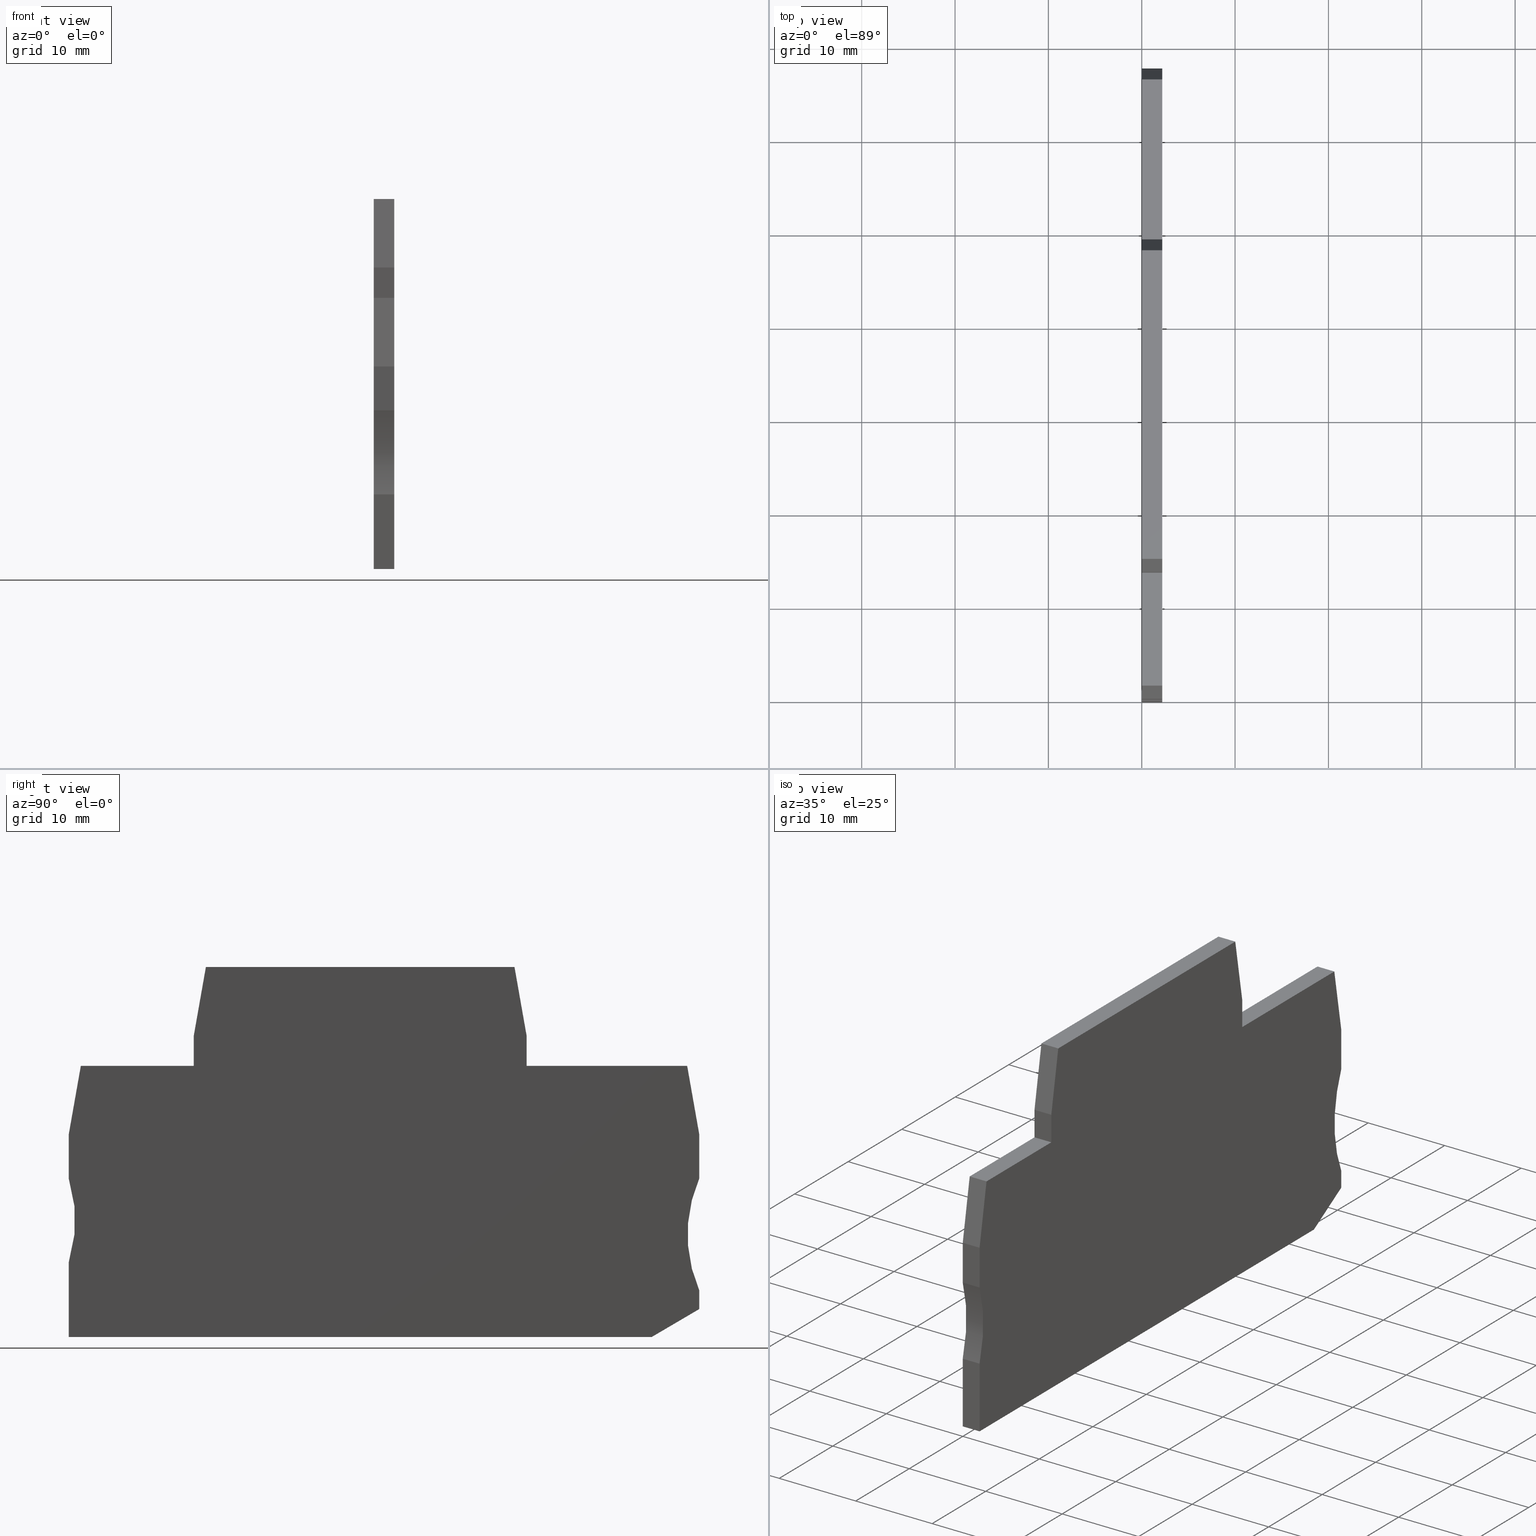
[diagram: canonical four-view strip — front | top / right | iso, engineering-drawing reading convention]
A machine part, canonical four-view strip (front | top / right | iso — engineering-drawing reading convention). The complete STEP part file that produces these views, byte-faithful:
ISO-10303-21;
HEADER;
FILE_DESCRIPTION(('Creo Elements/Direct Modeling STEP Export'),'2;1');
FILE_NAME(
'D:/temp/JobSpoolerServerData/JobServer Files/60e5dd58-bd78-48d4-917f-54
f4e4605abc/work/output/model.stp','2018-03-20T 7:31:34',(''),(''),
'Creo Elements/Direct Modeling STEP processor for AP214 (Solid Model)',
'Creo Elements/Direct Modeling 18.1I  14-Aug-2016 (C) Parametric Technol
ogy GmbH','');
FILE_SCHEMA(('AUTOMOTIVE_DESIGN { 1 0 10303 214 1 1 1 1 }'));
ENDSEC;
DATA;
#10=CARTESIAN_POINT('',(96.9073958539173,-5.90000000010878,53.67));
#20=DIRECTION('',(1.,8.74514136349906E-15,0.));
#30=DIRECTION('',(8.74514136349906E-15,-1.,0.));
#40=AXIS2_PLACEMENT_3D('',#10,#20,#30);
#50=PLANE('',#40);
#60=CARTESIAN_POINT('',(96.9073958539173,-11.94298,53.67));
#70=DIRECTION('',(8.74514136349906E-15,-1.,0.));
#80=VECTOR('',#70,1.);
#90=LINE('',#60,#80);
#100=CARTESIAN_POINT('',(96.9073958539173,-5.90000000010878,53.67));
#110=VERTEX_POINT('',#100);
#120=CARTESIAN_POINT('',(96.9073958539173,-9.15000000000308,53.67));
#130=VERTEX_POINT('',#120);
#140=EDGE_CURVE('',#110,#130,#90,.T.);
#150=ORIENTED_EDGE('',*,*,#140,.F.);
#160=CARTESIAN_POINT('',(96.9073958539173,-9.15000000000308,53.67));
#170=DIRECTION('',(0.,0.,-1.));
#180=VECTOR('',#170,1.);
#190=LINE('',#160,#180);
#200=CARTESIAN_POINT('',(96.9073958539173,-9.15000000000308,55.87));
#210=VERTEX_POINT('',#200);
#220=EDGE_CURVE('',#210,#130,#190,.T.);
#230=ORIENTED_EDGE('',*,*,#220,.T.);
#240=CARTESIAN_POINT('',(96.9073958539173,-11.94298,55.87));
#250=DIRECTION('',(-8.74514136349906E-15,1.,0.));
#260=VECTOR('',#250,1.);
#270=LINE('',#240,#260);
#280=CARTESIAN_POINT('',(96.9073958539173,-5.90000000010878,55.87));
#290=VERTEX_POINT('',#280);
#300=EDGE_CURVE('',#210,#290,#270,.T.);
#310=ORIENTED_EDGE('',*,*,#300,.F.);
#320=CARTESIAN_POINT('',(96.9073958539173,-5.90000000010878,53.67));
#330=DIRECTION('',(0.,0.,1.));
#340=VECTOR('',#330,1.);
#350=LINE('',#320,#340);
#360=EDGE_CURVE('',#110,#290,#350,.T.);
#370=ORIENTED_EDGE('',*,*,#360,.T.);
#380=EDGE_LOOP('',(#370,#310,#230,#150));
#390=FACE_OUTER_BOUND('',#380,.T.);
#400=ADVANCED_FACE('',(#390),#50,.T.);
#410=COLOUR_RGB('',0.560784339904785,0.588235318660736,0.600000023841858
);
#420=FILL_AREA_STYLE_COLOUR('',#410);
#430=FILL_AREA_STYLE('',(#420));
#440=SURFACE_STYLE_FILL_AREA(#430);
#450=SURFACE_SIDE_STYLE('',(#440));
#460=SURFACE_STYLE_USAGE(.BOTH.,#450);
#470=PRESENTATION_STYLE_ASSIGNMENT((#460));
#480=CARTESIAN_POINT('',(110.789442363971,-38.2000000000016,53.67));
#490=DIRECTION('',(-0.,-1.,-0.));
#500=DIRECTION('',(-1.,0.,0.));
#510=AXIS2_PLACEMENT_3D('',#480,#490,#500);
#520=PLANE('',#510);
#530=CARTESIAN_POINT('',(47.8573958538972,-38.2000000000016,53.67));
#540=DIRECTION('',(0.,0.,1.));
#550=VECTOR('',#540,1.);
#560=LINE('',#530,#550);
#570=CARTESIAN_POINT('',(47.8573958538972,-38.2000000000016,53.67));
#580=VERTEX_POINT('',#570);
#590=CARTESIAN_POINT('',(47.8573958538972,-38.2000000000016,55.87));
#600=VERTEX_POINT('',#590);
#610=EDGE_CURVE('',#580,#600,#560,.T.);
#620=ORIENTED_EDGE('',*,*,#610,.F.);
#630=CARTESIAN_POINT('',(104.930098,-38.2000000000016,55.87));
#640=DIRECTION('',(1.,0.,0.));
#650=VECTOR('',#640,1.);
#660=LINE('',#630,#650);
#670=CARTESIAN_POINT('',(110.302453373372,-38.2000000000016,55.87));
#680=VERTEX_POINT('',#670);
#690=EDGE_CURVE('',#600,#680,#660,.T.);
#700=ORIENTED_EDGE('',*,*,#690,.F.);
#710=CARTESIAN_POINT('',(110.302453373372,-38.2000000000016,53.67));
#720=DIRECTION('',(0.,0.,-1.));
#730=VECTOR('',#720,1.);
#740=LINE('',#710,#730);
#750=CARTESIAN_POINT('',(110.302453373372,-38.2000000000016,53.67));
#760=VERTEX_POINT('',#750);
#770=EDGE_CURVE('',#680,#760,#740,.T.);
#780=ORIENTED_EDGE('',*,*,#770,.F.);
#790=CARTESIAN_POINT('',(104.930098,-38.2000000000016,53.67));
#800=DIRECTION('',(-1.,0.,0.));
#810=VECTOR('',#800,1.);
#820=LINE('',#790,#810);
#830=EDGE_CURVE('',#760,#580,#820,.T.);
#840=ORIENTED_EDGE('',*,*,#830,.F.);
#850=EDGE_LOOP('',(#840,#780,#700,#620));
#860=FACE_OUTER_BOUND('',#850,.T.);
#870=ADVANCED_FACE('',(#860),#520,.T.);
#880=COLOUR_RGB('',0.560784339904785,0.588235318660736,0.600000023841858
);
#890=FILL_AREA_STYLE_COLOUR('',#880);
#900=FILL_AREA_STYLE('',(#890));
#910=SURFACE_STYLE_FILL_AREA(#900);
#920=SURFACE_SIDE_STYLE('',(#910));
#930=SURFACE_STYLE_USAGE(.BOTH.,#920);
#940=PRESENTATION_STYLE_ASSIGNMENT((#930));
#950=CARTESIAN_POINT('',(115.407395853897,-16.5000017509225,53.67));
#960=DIRECTION('',(1.,0.,0.));
#970=DIRECTION('',(0.,-1.,0.));
#980=AXIS2_PLACEMENT_3D('',#950,#960,#970);
#990=PLANE('',#980);
#1000=CARTESIAN_POINT('',(115.407395853897,-11.94298,53.67));
#1010=DIRECTION('',(0.,-1.,0.));
#1020=VECTOR('',#1010,1.);
#1030=LINE('',#1000,#1020);
#1040=CARTESIAN_POINT('',(115.407395853897,-16.5000017509225,53.67));
#1050=VERTEX_POINT('',#1040);
#1060=CARTESIAN_POINT('',(115.407395853897,-21.2000000000027,53.67));
#1070=VERTEX_POINT('',#1060);
#1080=EDGE_CURVE('',#1050,#1070,#1030,.T.);
#1090=ORIENTED_EDGE('',*,*,#1080,.F.);
#1100=CARTESIAN_POINT('',(115.407395853897,-21.2000000000027,53.67));
#1110=DIRECTION('',(0.,0.,1.));
#1120=VECTOR('',#1110,1.);
#1130=LINE('',#1100,#1120);
#1140=CARTESIAN_POINT('',(115.407395853897,-21.2000000000027,55.87));
#1150=VERTEX_POINT('',#1140);
#1160=EDGE_CURVE('',#1070,#1150,#1130,.T.);
#1170=ORIENTED_EDGE('',*,*,#1160,.F.);
#1180=CARTESIAN_POINT('',(115.407395853897,-11.94298,55.87));
#1190=DIRECTION('',(0.,1.,0.));
#1200=VECTOR('',#1190,1.);
#1210=LINE('',#1180,#1200);
#1220=CARTESIAN_POINT('',(115.407395853897,-16.5000017509225,55.87));
#1230=VERTEX_POINT('',#1220);
#1240=EDGE_CURVE('',#1150,#1230,#1210,.T.);
#1250=ORIENTED_EDGE('',*,*,#1240,.F.);
#1260=CARTESIAN_POINT('',(115.407395853897,-16.5000017509225,53.67));
#1270=DIRECTION('',(0.,0.,1.));
#1280=VECTOR('',#1270,1.);
#1290=LINE('',#1260,#1280);
#1300=EDGE_CURVE('',#1050,#1230,#1290,.T.);
#1310=ORIENTED_EDGE('',*,*,#1300,.T.);
#1320=EDGE_LOOP('',(#1310,#1250,#1170,#1090));
#1330=FACE_OUTER_BOUND('',#1320,.T.);
#1340=ADVANCED_FACE('',(#1330),#990,.T.);
#1350=COLOUR_RGB('',0.560784339904785,0.588235318660736,
0.600000023841858);
#1360=FILL_AREA_STYLE_COLOUR('',#1350);
#1370=FILL_AREA_STYLE('',(#1360));
#1380=SURFACE_STYLE_FILL_AREA(#1370);
#1390=SURFACE_SIDE_STYLE('',(#1380));
#1400=SURFACE_STYLE_USAGE(.BOTH.,#1390);
#1410=PRESENTATION_STYLE_ASSIGNMENT((#1400));
#1420=CARTESIAN_POINT('',(47.8573958538972,-49.2892826418515,53.67));
#1430=DIRECTION('',(-1.,4.65275954243089E-17,0.));
#1440=DIRECTION('',(-4.65275954243089E-17,-1.,0.));
#1450=AXIS2_PLACEMENT_3D('',#1420,#1430,#1440);
#1460=PLANE('',#1450);
#1470=CARTESIAN_POINT('',(47.8573958538972,-11.94298,53.67));
#1480=DIRECTION('',(4.65275954243089E-17,1.,0.));
#1490=VECTOR('',#1480,1.);
#1500=LINE('',#1470,#1490);
#1510=CARTESIAN_POINT('',(47.8573958538972,-30.2000000000048,53.67));
#1520=VERTEX_POINT('',#1510);
#1530=EDGE_CURVE('',#580,#1520,#1500,.T.);
#1540=ORIENTED_EDGE('',*,*,#1530,.F.);
#1550=CARTESIAN_POINT('',(47.8573958538972,-30.2000000000048,53.67));
#1560=DIRECTION('',(0.,0.,-1.));
#1570=VECTOR('',#1560,1.);
#1580=LINE('',#1550,#1570);
#1590=CARTESIAN_POINT('',(47.8573958538972,-30.2000000000048,55.87));
#1600=VERTEX_POINT('',#1590);
#1610=EDGE_CURVE('',#1600,#1520,#1580,.T.);
#1620=ORIENTED_EDGE('',*,*,#1610,.T.);
#1630=CARTESIAN_POINT('',(47.8573958538972,-11.94298,55.87));
#1640=DIRECTION('',(-4.65275954243089E-17,-1.,0.));
#1650=VECTOR('',#1640,1.);
#1660=LINE('',#1630,#1650);
#1670=EDGE_CURVE('',#1600,#600,#1660,.T.);
#1680=ORIENTED_EDGE('',*,*,#1670,.F.);
#1690=ORIENTED_EDGE('',*,*,#610,.T.);
#1700=EDGE_LOOP('',(#1690,#1680,#1620,#1540));
#1710=FACE_OUTER_BOUND('',#1700,.T.);
#1720=ADVANCED_FACE('',(#1710),#1460,.T.);
#1730=COLOUR_RGB('',0.560784339904785,0.588235318660736,
0.600000023841858);
#1740=FILL_AREA_STYLE_COLOUR('',#1730);
#1750=FILL_AREA_STYLE('',(#1740));
#1760=SURFACE_STYLE_FILL_AREA(#1750);
#1770=SURFACE_SIDE_STYLE('',(#1760));
#1780=SURFACE_STYLE_USAGE(.BOTH.,#1770);
#1790=PRESENTATION_STYLE_ASSIGNMENT((#1780));
#1800=CARTESIAN_POINT('',(115.407395853897,-33.2000000000028,53.67));
#1810=DIRECTION('',(1.,0.,0.));
#1820=DIRECTION('',(0.,-1.,0.));
#1830=AXIS2_PLACEMENT_3D('',#1800,#1810,#1820);
#1840=PLANE('',#1830);
#1850=CARTESIAN_POINT('',(115.407395853897,-11.94298,53.67));
#1860=DIRECTION('',(0.,-1.,0.));
#1870=VECTOR('',#1860,1.);
#1880=LINE('',#1850,#1870);
#1890=CARTESIAN_POINT('',(115.407395853897,-33.2000000000028,53.67));
#1900=VERTEX_POINT('',#1890);
#1910=CARTESIAN_POINT('',(115.407395853897,-35.2001345347364,53.67));
#1920=VERTEX_POINT('',#1910);
#1930=EDGE_CURVE('',#1900,#1920,#1880,.T.);
#1940=ORIENTED_EDGE('',*,*,#1930,.F.);
#1950=CARTESIAN_POINT('',(115.407395853897,-35.2001345347364,53.67));
#1960=DIRECTION('',(0.,0.,1.));
#1970=VECTOR('',#1960,1.);
#1980=LINE('',#1950,#1970);
#1990=CARTESIAN_POINT('',(115.407395853897,-35.2001345347364,55.87));
#2000=VERTEX_POINT('',#1990);
#2010=EDGE_CURVE('',#1920,#2000,#1980,.T.);
#2020=ORIENTED_EDGE('',*,*,#2010,.F.);
#2030=CARTESIAN_POINT('',(115.407395853897,-11.94298,55.87));
#2040=DIRECTION('',(0.,1.,0.));
#2050=VECTOR('',#2040,1.);
#2060=LINE('',#2030,#2050);
#2070=CARTESIAN_POINT('',(115.407395853897,-33.2000000000028,55.87));
#2080=VERTEX_POINT('',#2070);
#2090=EDGE_CURVE('',#2000,#2080,#2060,.T.);
#2100=ORIENTED_EDGE('',*,*,#2090,.F.);
#2110=CARTESIAN_POINT('',(115.407395853897,-33.2000000000028,53.67));
#2120=DIRECTION('',(0.,0.,1.));
#2130=VECTOR('',#2120,1.);
#2140=LINE('',#2110,#2130);
#2150=EDGE_CURVE('',#1900,#2080,#2140,.T.);
#2160=ORIENTED_EDGE('',*,*,#2150,.T.);
#2170=EDGE_LOOP('',(#2160,#2100,#2020,#1940));
#2180=FACE_OUTER_BOUND('',#2170,.T.);
#2190=ADVANCED_FACE('',(#2180),#1840,.T.);
#2200=COLOUR_RGB('',0.560784339904785,0.588235318660736,
0.600000023841858);
#2210=FILL_AREA_STYLE_COLOUR('',#2200);
#2220=FILL_AREA_STYLE('',(#2210));
#2230=SURFACE_STYLE_FILL_AREA(#2220);
#2240=SURFACE_SIDE_STYLE('',(#2230));
#2250=SURFACE_STYLE_USAGE(.BOTH.,#2240);
#2260=PRESENTATION_STYLE_ASSIGNMENT((#2250));
#2270=CARTESIAN_POINT('',(129.155122938765,-27.2000000000027,53.67));
#2280=DIRECTION('',(0.,0.,1.));
#2290=DIRECTION('',(1.,0.,0.));
#2300=AXIS2_PLACEMENT_3D('',#2270,#2280,#2290);
#2310=CYLINDRICAL_SURFACE('',#2300,15.);
#2320=CARTESIAN_POINT('',(129.155122938765,-27.2000000000027,53.67));
#2330=DIRECTION('',(0.,0.,1.));
#2340=DIRECTION('',(1.,0.,0.));
#2350=AXIS2_PLACEMENT_3D('',#2320,#2330,#2340);
#2360=CIRCLE('',#2350,15.);
#2370=EDGE_CURVE('',#1070,#1900,#2360,.T.);
#2380=ORIENTED_EDGE('',*,*,#2370,.F.);
#2390=ORIENTED_EDGE('',*,*,#2150,.F.);
#2400=CARTESIAN_POINT('',(129.155122938765,-27.2000000000027,55.87));
#2410=DIRECTION('',(0.,0.,1.));
#2420=DIRECTION('',(1.,0.,0.));
#2430=AXIS2_PLACEMENT_3D('',#2400,#2410,#2420);
#2440=CIRCLE('',#2430,15.);
#2450=EDGE_CURVE('',#1150,#2080,#2440,.T.);
#2460=ORIENTED_EDGE('',*,*,#2450,.T.);
#2470=ORIENTED_EDGE('',*,*,#1160,.T.);
#2480=EDGE_LOOP('',(#2470,#2460,#2390,#2380));
#2490=FACE_OUTER_BOUND('',#2480,.T.);
#2500=ADVANCED_FACE('',(#2490),#2310,.F.);
#2510=COLOUR_RGB('',0.560784339904785,0.588235318660736,
0.600000023841858);
#2520=FILL_AREA_STYLE_COLOUR('',#2510);
#2530=FILL_AREA_STYLE('',(#2520));
#2540=SURFACE_STYLE_FILL_AREA(#2530);
#2550=SURFACE_SIDE_STYLE('',(#2540));
#2560=SURFACE_STYLE_USAGE(.BOTH.,#2550);
#2570=PRESENTATION_STYLE_ASSIGNMENT((#2560));
#2580=CARTESIAN_POINT('',(47.8573958538972,-21.2000000000006,53.67));
#2590=DIRECTION('',(-1.,0.,0.));
#2600=DIRECTION('',(0.,-1.,0.));
#2610=AXIS2_PLACEMENT_3D('',#2580,#2590,#2600);
#2620=PLANE('',#2610);
#2630=CARTESIAN_POINT('',(47.8573958538972,-16.4999982489833,53.67));
#2640=DIRECTION('',(0.,0.,1.));
#2650=VECTOR('',#2640,1.);
#2660=LINE('',#2630,#2650);
#2670=CARTESIAN_POINT('',(47.8573958538972,-16.4999982489833,53.67));
#2680=VERTEX_POINT('',#2670);
#2690=CARTESIAN_POINT('',(47.8573958538972,-16.4999982489833,55.87));
#2700=VERTEX_POINT('',#2690);
#2710=EDGE_CURVE('',#2680,#2700,#2660,.T.);
#2720=ORIENTED_EDGE('',*,*,#2710,.F.);
#2730=CARTESIAN_POINT('',(47.8573958538972,-11.94298,55.87));
#2740=DIRECTION('',(0.,-1.,0.));
#2750=VECTOR('',#2740,1.);
#2760=LINE('',#2730,#2750);
#2770=CARTESIAN_POINT('',(47.8573958538972,-21.2000000000006,55.87));
#2780=VERTEX_POINT('',#2770);
#2790=EDGE_CURVE('',#2700,#2780,#2760,.T.);
#2800=ORIENTED_EDGE('',*,*,#2790,.F.);
#2810=CARTESIAN_POINT('',(47.8573958538972,-21.2000000000006,53.67));
#2820=DIRECTION('',(0.,0.,-1.));
#2830=VECTOR('',#2820,1.);
#2840=LINE('',#2810,#2830);
#2850=CARTESIAN_POINT('',(47.8573958538972,-21.2000000000006,53.67));
#2860=VERTEX_POINT('',#2850);
#2870=EDGE_CURVE('',#2780,#2860,#2840,.T.);
#2880=ORIENTED_EDGE('',*,*,#2870,.F.);
#2890=CARTESIAN_POINT('',(47.8573958538972,-11.94298,53.67));
#2900=DIRECTION('',(0.,1.,0.));
#2910=VECTOR('',#2900,1.);
#2920=LINE('',#2890,#2910);
#2930=EDGE_CURVE('',#2860,#2680,#2920,.T.);
#2940=ORIENTED_EDGE('',*,*,#2930,.F.);
#2950=EDGE_LOOP('',(#2940,#2880,#2800,#2720));
#2960=FACE_OUTER_BOUND('',#2950,.T.);
#2970=ADVANCED_FACE('',(#2960),#2620,.T.);
#2980=COLOUR_RGB('',0.560784339904785,0.588235318660736,
0.600000023841858);
#2990=FILL_AREA_STYLE_COLOUR('',#2980);
#3000=FILL_AREA_STYLE('',(#2990));
#3010=SURFACE_STYLE_FILL_AREA(#3000);
#3020=SURFACE_SIDE_STYLE('',(#3010));
#3030=SURFACE_STYLE_USAGE(.BOTH.,#3020);
#3040=PRESENTATION_STYLE_ASSIGNMENT((#3030));
#3050=CARTESIAN_POINT('',(33.5483078326437,-25.7000000000027,53.67));
#3060=DIRECTION('',(0.,0.,-1.));
#3070=DIRECTION('',(-1.,0.,0.));
#3080=AXIS2_PLACEMENT_3D('',#3050,#3060,#3070);
#3090=CYLINDRICAL_SURFACE('',#3080,15.);
#3100=CARTESIAN_POINT('',(33.5483078326437,-25.7000000000027,53.67));
#3110=DIRECTION('',(0.,0.,-1.));
#3120=DIRECTION('',(-1.,0.,0.));
#3130=AXIS2_PLACEMENT_3D('',#3100,#3110,#3120);
#3140=CIRCLE('',#3130,15.);
#3150=EDGE_CURVE('',#2860,#1520,#3140,.T.);
#3160=ORIENTED_EDGE('',*,*,#3150,.T.);
#3170=ORIENTED_EDGE('',*,*,#2870,.T.);
#3180=CARTESIAN_POINT('',(33.5483078326437,-25.7000000000027,55.87));
#3190=DIRECTION('',(0.,0.,-1.));
#3200=DIRECTION('',(-1.,0.,0.));
#3210=AXIS2_PLACEMENT_3D('',#3180,#3190,#3200);
#3220=CIRCLE('',#3210,15.);
#3230=EDGE_CURVE('',#2780,#1600,#3220,.T.);
#3240=ORIENTED_EDGE('',*,*,#3230,.F.);
#3250=ORIENTED_EDGE('',*,*,#1610,.F.);
#3260=EDGE_LOOP('',(#3250,#3240,#3170,#3160));
#3270=FACE_OUTER_BOUND('',#3260,.T.);
#3280=ADVANCED_FACE('',(#3270),#3090,.F.);
#3290=COLOUR_RGB('',0.560784339904785,0.588235318660736,
0.600000023841858);
#3300=FILL_AREA_STYLE_COLOUR('',#3290);
#3310=FILL_AREA_STYLE('',(#3300));
#3320=SURFACE_STYLE_FILL_AREA(#3310);
#3330=SURFACE_SIDE_STYLE('',(#3320));
#3340=SURFACE_STYLE_USAGE(.BOTH.,#3330);
#3350=PRESENTATION_STYLE_ASSIGNMENT((#3340));
#3360=CARTESIAN_POINT('',(50.6620291852084,-9.97054786192231,55.87));
#3370=DIRECTION('',(0.,0.,-1.));
#3380=DIRECTION('',(-1.,0.,0.));
#3390=AXIS2_PLACEMENT_3D('',#3360,#3370,#3380);
#3400=PLANE('',#3390);
#3410=CARTESIAN_POINT('',(48.6609211227738,-11.94298,55.87));
#3420=DIRECTION('',(0.173648177666926,0.984807753012209,0.));
#3430=VECTOR('',#3420,1.);
#3440=LINE('',#3410,#3430);
#3450=CARTESIAN_POINT('',(49.1533988533523,-9.15000000000308,55.87));
#3460=VERTEX_POINT('',#3450);
#3470=EDGE_CURVE('',#2700,#3460,#3440,.T.);
#3480=ORIENTED_EDGE('',*,*,#3470,.F.);
#3490=CARTESIAN_POINT('',(104.930098,-9.15000000003588,55.87));
#3500=DIRECTION('',(1.,-5.88205564955502E-13,0.));
#3510=VECTOR('',#3500,1.);
#3520=LINE('',#3490,#3510);
#3530=CARTESIAN_POINT('',(61.2573958538972,-9.15000000001019,55.87));
#3540=VERTEX_POINT('',#3530);
#3550=EDGE_CURVE('',#3460,#3540,#3520,.T.);
#3560=ORIENTED_EDGE('',*,*,#3550,.F.);
#3570=CARTESIAN_POINT('',(61.2573958538972,-11.94298,55.87));
#3580=DIRECTION('',(0.,-1.,0.));
#3590=VECTOR('',#3580,1.);
#3600=LINE('',#3570,#3590);
#3610=CARTESIAN_POINT('',(61.2573958538972,-5.8999999999975,55.87));
#3620=VERTEX_POINT('',#3610);
#3630=EDGE_CURVE('',#3620,#3540,#3600,.T.);
#3640=ORIENTED_EDGE('',*,*,#3630,.T.);
#3650=CARTESIAN_POINT('',(60.1918554360151,-11.94298,55.87));
#3660=DIRECTION('',(-0.17364817766693,-0.984807753012208,0.));
#3670=VECTOR('',#3660,1.);
#3680=LINE('',#3650,#3670);
#3690=CARTESIAN_POINT('',(62.5533991621023,1.44999999999058,55.87));
#3700=VERTEX_POINT('',#3690);
#3710=EDGE_CURVE('',#3700,#3620,#3680,.T.);
#3720=ORIENTED_EDGE('',*,*,#3710,.T.);
#3730=CARTESIAN_POINT('',(104.930098,1.44999999999058,55.87));
#3740=DIRECTION('',(-1.,0.,0.));
#3750=VECTOR('',#3740,1.);
#3760=LINE('',#3730,#3750);
#3770=CARTESIAN_POINT('',(95.6113925456925,1.44999999999058,55.87));
#3780=VERTEX_POINT('',#3770);
#3790=EDGE_CURVE('',#3780,#3700,#3760,.T.);
#3800=ORIENTED_EDGE('',*,*,#3790,.T.);
#3810=CARTESIAN_POINT('',(97.9729362717797,-11.94298,55.87));
#3820=DIRECTION('',(-0.173648177666931,0.984807753012208,0.));
#3830=VECTOR('',#3820,1.);
#3840=LINE('',#3810,#3830);
#3850=EDGE_CURVE('',#290,#3780,#3840,.T.);
#3860=ORIENTED_EDGE('',*,*,#3850,.T.);
#3870=ORIENTED_EDGE('',*,*,#300,.T.);
#3880=CARTESIAN_POINT('',(104.930098,-9.15000000000308,55.87));
#3890=DIRECTION('',(-1.,0.,0.));
#3900=VECTOR('',#3890,1.);
#3910=LINE('',#3880,#3900);
#3920=CARTESIAN_POINT('',(114.111392236956,-9.15000000000308,55.87));
#3930=VERTEX_POINT('',#3920);
#3940=EDGE_CURVE('',#3930,#210,#3910,.T.);
#3950=ORIENTED_EDGE('',*,*,#3940,.T.);
#3960=CARTESIAN_POINT('',(114.603869967534,-11.94298,55.87));
#3970=DIRECTION('',(-0.17364817766693,0.984807753012208,0.));
#3980=VECTOR('',#3970,1.);
#3990=LINE('',#3960,#3980);
#4000=EDGE_CURVE('',#1230,#3930,#3990,.T.);
#4010=ORIENTED_EDGE('',*,*,#4000,.T.);
#4020=ORIENTED_EDGE('',*,*,#1240,.T.);
#4030=ORIENTED_EDGE('',*,*,#2450,.F.);
#4040=ORIENTED_EDGE('',*,*,#2090,.T.);
#4050=CARTESIAN_POINT('',(104.930098,-41.3570078239273,55.87));
#4060=DIRECTION('',(0.862158641431198,0.506638408537598,0.));
#4070=VECTOR('',#4060,1.);
#4080=LINE('',#4050,#4070);
#4090=EDGE_CURVE('',#680,#2000,#4080,.T.);
#4100=ORIENTED_EDGE('',*,*,#4090,.T.);
#4110=ORIENTED_EDGE('',*,*,#690,.T.);
#4120=ORIENTED_EDGE('',*,*,#1670,.T.);
#4130=ORIENTED_EDGE('',*,*,#3230,.T.);
#4140=ORIENTED_EDGE('',*,*,#2790,.T.);
#4150=EDGE_LOOP('',(#4140,#4130,#4120,#4110,#4100,#4040,#4030,#4020,
#4010,#3950,#3870,#3860,#3800,#3720,#3640,#3560,#3480));
#4160=FACE_OUTER_BOUND('',#4150,.T.);
#4170=ADVANCED_FACE('',(#4160),#3400,.F.);
#4180=COLOUR_RGB('',0.560784339904785,0.588235318660736,
0.600000023841858);
#4190=FILL_AREA_STYLE_COLOUR('',#4180);
#4200=FILL_AREA_STYLE('',(#4190));
#4210=SURFACE_STYLE_FILL_AREA(#4200);
#4220=SURFACE_SIDE_STYLE('',(#4210));
#4230=SURFACE_STYLE_USAGE(.BOTH.,#4220);
#4240=PRESENTATION_STYLE_ASSIGNMENT((#4230));
#4250=CARTESIAN_POINT('',(49.1533985851014,-9.15000000000308,53.67));
#4260=DIRECTION('',(5.88205564955502E-13,1.,0.));
#4270=DIRECTION('',(1.,-5.88205564955502E-13,0.));
#4280=AXIS2_PLACEMENT_3D('',#4250,#4260,#4270);
#4290=PLANE('',#4280);
#4300=CARTESIAN_POINT('',(104.930098,-9.15000000003588,53.67));
#4310=DIRECTION('',(1.,-5.88205564955502E-13,0.));
#4320=VECTOR('',#4310,1.);
#4330=LINE('',#4300,#4320);
#4340=CARTESIAN_POINT('',(49.1533988533523,-9.15000000000308,53.67));
#4350=VERTEX_POINT('',#4340);
#4360=CARTESIAN_POINT('',(61.2573958538972,-9.15000000001019,53.67));
#4370=VERTEX_POINT('',#4360);
#4380=EDGE_CURVE('',#4350,#4370,#4330,.T.);
#4390=ORIENTED_EDGE('',*,*,#4380,.F.);
#4400=CARTESIAN_POINT('',(61.2573958538972,-9.15000000001019,53.67));
#4410=DIRECTION('',(0.,0.,-1.));
#4420=VECTOR('',#4410,1.);
#4430=LINE('',#4400,#4420);
#4440=EDGE_CURVE('',#3540,#4370,#4430,.T.);
#4450=ORIENTED_EDGE('',*,*,#4440,.T.);
#4460=ORIENTED_EDGE('',*,*,#3550,.T.);
#4470=CARTESIAN_POINT('',(49.1533988533523,-9.15000000000308,53.67));
#4480=DIRECTION('',(0.,0.,1.));
#4490=VECTOR('',#4480,1.);
#4500=LINE('',#4470,#4490);
#4510=EDGE_CURVE('',#4350,#3460,#4500,.T.);
#4520=ORIENTED_EDGE('',*,*,#4510,.T.);
#4530=EDGE_LOOP('',(#4520,#4460,#4450,#4390));
#4540=FACE_OUTER_BOUND('',#4530,.T.);
#4550=ADVANCED_FACE('',(#4540),#4290,.T.);
#4560=COLOUR_RGB('',0.560784339904785,0.588235318660736,
0.600000023841858);
#4570=FILL_AREA_STYLE_COLOUR('',#4560);
#4580=FILL_AREA_STYLE('',(#4570));
#4590=SURFACE_STYLE_FILL_AREA(#4580);
#4600=SURFACE_SIDE_STYLE('',(#4590));
#4610=SURFACE_STYLE_USAGE(.BOTH.,#4600);
#4620=PRESENTATION_STYLE_ASSIGNMENT((#4610));
#4630=CARTESIAN_POINT('',(100.607395853917,-9.15000000000308,53.67));
#4640=DIRECTION('',(-0.,1.,0.));
#4650=DIRECTION('',(1.,0.,0.));
#4660=AXIS2_PLACEMENT_3D('',#4630,#4640,#4650);
#4670=PLANE('',#4660);
#4680=ORIENTED_EDGE('',*,*,#220,.F.);
#4690=CARTESIAN_POINT('',(104.930098,-9.15000000000308,53.67));
#4700=DIRECTION('',(1.,0.,0.));
#4710=VECTOR('',#4700,1.);
#4720=LINE('',#4690,#4710);
#4730=CARTESIAN_POINT('',(114.111392236956,-9.15000000000308,53.67));
#4740=VERTEX_POINT('',#4730);
#4750=EDGE_CURVE('',#130,#4740,#4720,.T.);
#4760=ORIENTED_EDGE('',*,*,#4750,.F.);
#4770=CARTESIAN_POINT('',(114.111392236956,-9.15000000000308,53.67));
#4780=DIRECTION('',(0.,0.,1.));
#4790=VECTOR('',#4780,1.);
#4800=LINE('',#4770,#4790);
#4810=EDGE_CURVE('',#4740,#3930,#4800,.T.);
#4820=ORIENTED_EDGE('',*,*,#4810,.F.);
#4830=ORIENTED_EDGE('',*,*,#3940,.F.);
#4840=EDGE_LOOP('',(#4830,#4820,#4760,#4680));
#4850=FACE_OUTER_BOUND('',#4840,.T.);
#4860=ADVANCED_FACE('',(#4850),#4670,.T.);
#4870=COLOUR_RGB('',0.560784339904785,0.588235318660736,
0.600000023841858);
#4880=FILL_AREA_STYLE_COLOUR('',#4870);
#4890=FILL_AREA_STYLE('',(#4880));
#4900=SURFACE_STYLE_FILL_AREA(#4890);
#4910=SURFACE_SIDE_STYLE('',(#4900));
#4920=SURFACE_STYLE_USAGE(.BOTH.,#4910);
#4930=PRESENTATION_STYLE_ASSIGNMENT((#4920));
#4940=CARTESIAN_POINT('',(95.6113925456925,1.44999999999058,53.67));
#4950=DIRECTION('',(0.984807753012208,0.173648177666931,0.));
#4960=DIRECTION('',(0.173648177666931,-0.984807753012208,0.));
#4970=AXIS2_PLACEMENT_3D('',#4940,#4950,#4960);
#4980=PLANE('',#4970);
#4990=CARTESIAN_POINT('',(97.9729362717797,-11.94298,53.67));
#5000=DIRECTION('',(0.173648177666931,-0.984807753012208,0.));
#5010=VECTOR('',#5000,1.);
#5020=LINE('',#4990,#5010);
#5030=CARTESIAN_POINT('',(95.6113925456925,1.44999999999058,53.67));
#5040=VERTEX_POINT('',#5030);
#5050=EDGE_CURVE('',#5040,#110,#5020,.T.);
#5060=ORIENTED_EDGE('',*,*,#5050,.F.);
#5070=ORIENTED_EDGE('',*,*,#360,.F.);
#5080=ORIENTED_EDGE('',*,*,#3850,.F.);
#5090=CARTESIAN_POINT('',(95.6113925456925,1.44999999999058,53.67));
#5100=DIRECTION('',(0.,0.,1.));
#5110=VECTOR('',#5100,1.);
#5120=LINE('',#5090,#5110);
#5130=EDGE_CURVE('',#5040,#3780,#5120,.T.);
#5140=ORIENTED_EDGE('',*,*,#5130,.T.);
#5150=EDGE_LOOP('',(#5140,#5080,#5070,#5060));
#5160=FACE_OUTER_BOUND('',#5150,.T.);
#5170=ADVANCED_FACE('',(#5160),#4980,.T.);
#5180=COLOUR_RGB('',0.560784339904785,0.588235318660736,
0.600000023841858);
#5190=FILL_AREA_STYLE_COLOUR('',#5180);
#5200=FILL_AREA_STYLE('',(#5190));
#5210=SURFACE_STYLE_FILL_AREA(#5200);
#5220=SURFACE_SIDE_STYLE('',(#5210));
#5230=SURFACE_STYLE_USAGE(.BOTH.,#5220);
#5240=PRESENTATION_STYLE_ASSIGNMENT((#5230));
#5250=CARTESIAN_POINT('',(47.8573958538972,-16.4999982489833,53.67));
#5260=DIRECTION('',(-0.984807753012209,0.173648177666926,0.));
#5270=DIRECTION('',(-0.173648177666926,-0.984807753012209,0.));
#5280=AXIS2_PLACEMENT_3D('',#5250,#5260,#5270);
#5290=PLANE('',#5280);
#5300=CARTESIAN_POINT('',(48.6609211227738,-11.94298,53.67));
#5310=DIRECTION('',(0.173648177666926,0.984807753012209,0.));
#5320=VECTOR('',#5310,1.);
#5330=LINE('',#5300,#5320);
#5340=EDGE_CURVE('',#2680,#4350,#5330,.T.);
#5350=ORIENTED_EDGE('',*,*,#5340,.F.);
#5360=ORIENTED_EDGE('',*,*,#4510,.F.);
#5370=ORIENTED_EDGE('',*,*,#3470,.T.);
#5380=ORIENTED_EDGE('',*,*,#2710,.T.);
#5390=EDGE_LOOP('',(#5380,#5370,#5360,#5350));
#5400=FACE_OUTER_BOUND('',#5390,.T.);
#5410=ADVANCED_FACE('',(#5400),#5290,.T.);
#5420=COLOUR_RGB('',0.560784339904785,0.588235318660736,
0.600000023841858);
#5430=FILL_AREA_STYLE_COLOUR('',#5420);
#5440=FILL_AREA_STYLE('',(#5430));
#5450=SURFACE_STYLE_FILL_AREA(#5440);
#5460=SURFACE_SIDE_STYLE('',(#5450));
#5470=SURFACE_STYLE_USAGE(.BOTH.,#5460);
#5480=PRESENTATION_STYLE_ASSIGNMENT((#5470));
#5490=CARTESIAN_POINT('',(114.111392236956,-9.15000000000308,53.67));
#5500=DIRECTION('',(0.984807753012208,0.17364817766693,0.));
#5510=DIRECTION('',(0.17364817766693,-0.984807753012208,0.));
#5520=AXIS2_PLACEMENT_3D('',#5490,#5500,#5510);
#5530=PLANE('',#5520);
#5540=CARTESIAN_POINT('',(114.603869967534,-11.94298,53.67));
#5550=DIRECTION('',(0.17364817766693,-0.984807753012208,0.));
#5560=VECTOR('',#5550,1.);
#5570=LINE('',#5540,#5560);
#5580=EDGE_CURVE('',#4740,#1050,#5570,.T.);
#5590=ORIENTED_EDGE('',*,*,#5580,.F.);
#5600=ORIENTED_EDGE('',*,*,#1300,.F.);
#5610=ORIENTED_EDGE('',*,*,#4000,.F.);
#5620=ORIENTED_EDGE('',*,*,#4810,.T.);
#5630=EDGE_LOOP('',(#5620,#5610,#5600,#5590));
#5640=FACE_OUTER_BOUND('',#5630,.T.);
#5650=ADVANCED_FACE('',(#5640),#5530,.T.);
#5660=COLOUR_RGB('',0.560784339904785,0.588235318660736,
0.600000023841858);
#5670=FILL_AREA_STYLE_COLOUR('',#5660);
#5680=FILL_AREA_STYLE('',(#5670));
#5690=SURFACE_STYLE_FILL_AREA(#5680);
#5700=SURFACE_SIDE_STYLE('',(#5690));
#5710=SURFACE_STYLE_USAGE(.BOTH.,#5700);
#5720=PRESENTATION_STYLE_ASSIGNMENT((#5710));
#5730=CARTESIAN_POINT('',(110.302453373372,-38.2000000000016,55.87));
#5740=DIRECTION('',(0.506638408537598,-0.862158641431198,0.));
#5750=DIRECTION('',(-0.862158641431198,-0.506638408537598,0.));
#5760=AXIS2_PLACEMENT_3D('',#5730,#5740,#5750);
#5770=PLANE('',#5760);
#5780=ORIENTED_EDGE('',*,*,#4090,.F.);
#5790=ORIENTED_EDGE('',*,*,#2010,.T.);
#5800=CARTESIAN_POINT('',(104.930098,-41.3570078239273,53.67));
#5810=DIRECTION('',(-0.862158641431198,-0.506638408537598,0.));
#5820=VECTOR('',#5810,1.);
#5830=LINE('',#5800,#5820);
#5840=EDGE_CURVE('',#1920,#760,#5830,.T.);
#5850=ORIENTED_EDGE('',*,*,#5840,.F.);
#5860=ORIENTED_EDGE('',*,*,#770,.T.);
#5870=EDGE_LOOP('',(#5860,#5850,#5790,#5780));
#5880=FACE_OUTER_BOUND('',#5870,.T.);
#5890=ADVANCED_FACE('',(#5880),#5770,.T.);
#5900=COLOUR_RGB('',0.560784339904785,0.588235318660736,
0.600000023841858);
#5910=FILL_AREA_STYLE_COLOUR('',#5900);
#5920=FILL_AREA_STYLE('',(#5910));
#5930=SURFACE_STYLE_FILL_AREA(#5920);
#5940=SURFACE_SIDE_STYLE('',(#5930));
#5950=SURFACE_STYLE_USAGE(.BOTH.,#5940);
#5960=PRESENTATION_STYLE_ASSIGNMENT((#5950));
#5970=CARTESIAN_POINT('',(79.2073958539156,1.44999999999058,53.67));
#5980=DIRECTION('',(-0.,1.,0.));
#5990=DIRECTION('',(1.,0.,0.));
#6000=AXIS2_PLACEMENT_3D('',#5970,#5980,#5990);
#6010=PLANE('',#6000);
#6020=CARTESIAN_POINT('',(62.5533991621023,1.44999999999058,53.67));
#6030=DIRECTION('',(0.,0.,1.));
#6040=VECTOR('',#6030,1.);
#6050=LINE('',#6020,#6040);
#6060=CARTESIAN_POINT('',(62.5533991621023,1.44999999999059,53.67));
#6070=VERTEX_POINT('',#6060);
#6080=EDGE_CURVE('',#6070,#3700,#6050,.T.);
#6090=ORIENTED_EDGE('',*,*,#6080,.T.);
#6100=CARTESIAN_POINT('',(104.930098,1.44999999999058,53.67));
#6110=DIRECTION('',(1.,0.,0.));
#6120=VECTOR('',#6110,1.);
#6130=LINE('',#6100,#6120);
#6140=EDGE_CURVE('',#6070,#5040,#6130,.T.);
#6150=ORIENTED_EDGE('',*,*,#6140,.F.);
#6160=ORIENTED_EDGE('',*,*,#5130,.F.);
#6170=ORIENTED_EDGE('',*,*,#3790,.F.);
#6180=EDGE_LOOP('',(#6170,#6160,#6150,#6090));
#6190=FACE_OUTER_BOUND('',#6180,.T.);
#6200=ADVANCED_FACE('',(#6190),#6010,.T.);
#6210=COLOUR_RGB('',0.560784339904785,0.588235318660736,
0.600000023841858);
#6220=FILL_AREA_STYLE_COLOUR('',#6210);
#6230=FILL_AREA_STYLE('',(#6220));
#6240=SURFACE_STYLE_FILL_AREA(#6230);
#6250=SURFACE_SIDE_STYLE('',(#6240));
#6260=SURFACE_STYLE_USAGE(.BOTH.,#6250);
#6270=PRESENTATION_STYLE_ASSIGNMENT((#6260));
#6280=CARTESIAN_POINT('',(56.1471459409733,-20.796013,53.67));
#6290=DIRECTION('',(0.,0.,-1.));
#6300=DIRECTION('',(-1.,0.,0.));
#6310=AXIS2_PLACEMENT_3D('',#6280,#6290,#6300);
#6320=PLANE('',#6310);
#6330=ORIENTED_EDGE('',*,*,#5840,.T.);
#6340=ORIENTED_EDGE('',*,*,#1930,.T.);
#6350=ORIENTED_EDGE('',*,*,#2370,.T.);
#6360=ORIENTED_EDGE('',*,*,#1080,.T.);
#6370=ORIENTED_EDGE('',*,*,#5580,.T.);
#6380=ORIENTED_EDGE('',*,*,#4750,.T.);
#6390=ORIENTED_EDGE('',*,*,#140,.T.);
#6400=ORIENTED_EDGE('',*,*,#5050,.T.);
#6410=ORIENTED_EDGE('',*,*,#6140,.T.);
#6420=CARTESIAN_POINT('',(60.1918554360151,-11.94298,53.67));
#6430=DIRECTION('',(0.17364817766693,0.984807753012208,0.));
#6440=VECTOR('',#6430,1.);
#6450=LINE('',#6420,#6440);
#6460=CARTESIAN_POINT('',(61.2573958538972,-5.8999999999975,53.67));
#6470=VERTEX_POINT('',#6460);
#6480=EDGE_CURVE('',#6470,#6070,#6450,.T.);
#6490=ORIENTED_EDGE('',*,*,#6480,.T.);
#6500=CARTESIAN_POINT('',(61.2573958538972,-11.94298,53.67));
#6510=DIRECTION('',(0.,1.,0.));
#6520=VECTOR('',#6510,1.);
#6530=LINE('',#6500,#6520);
#6540=EDGE_CURVE('',#4370,#6470,#6530,.T.);
#6550=ORIENTED_EDGE('',*,*,#6540,.T.);
#6560=ORIENTED_EDGE('',*,*,#4380,.T.);
#6570=ORIENTED_EDGE('',*,*,#5340,.T.);
#6580=ORIENTED_EDGE('',*,*,#2930,.T.);
#6590=ORIENTED_EDGE('',*,*,#3150,.F.);
#6600=ORIENTED_EDGE('',*,*,#1530,.T.);
#6610=ORIENTED_EDGE('',*,*,#830,.T.);
#6620=EDGE_LOOP('',(#6610,#6600,#6590,#6580,#6570,#6560,#6550,#6490,
#6410,#6400,#6390,#6380,#6370,#6360,#6350,#6340,#6330));
#6630=FACE_OUTER_BOUND('',#6620,.T.);
#6640=ADVANCED_FACE('',(#6630),#6320,.T.);
#6650=COLOUR_RGB('',0.560784339904785,0.588235318660736,
0.600000023841858);
#6660=FILL_AREA_STYLE_COLOUR('',#6650);
#6670=FILL_AREA_STYLE('',(#6660));
#6680=SURFACE_STYLE_FILL_AREA(#6670);
#6690=SURFACE_SIDE_STYLE('',(#6680));
#6700=SURFACE_STYLE_USAGE(.BOTH.,#6690);
#6710=PRESENTATION_STYLE_ASSIGNMENT((#6700));
#6720=CARTESIAN_POINT('',(61.2573958538972,-9.15000000001019,53.67));
#6730=DIRECTION('',(-1.,0.,0.));
#6740=DIRECTION('',(0.,1.,0.));
#6750=AXIS2_PLACEMENT_3D('',#6720,#6730,#6740);
#6760=PLANE('',#6750);
#6770=CARTESIAN_POINT('',(61.2573958538972,-5.8999999999975,53.67));
#6780=DIRECTION('',(0.,0.,1.));
#6790=VECTOR('',#6780,1.);
#6800=LINE('',#6770,#6790);
#6810=EDGE_CURVE('',#6470,#3620,#6800,.T.);
#6820=ORIENTED_EDGE('',*,*,#6810,.F.);
#6830=ORIENTED_EDGE('',*,*,#3630,.F.);
#6840=ORIENTED_EDGE('',*,*,#4440,.F.);
#6850=ORIENTED_EDGE('',*,*,#6540,.F.);
#6860=EDGE_LOOP('',(#6850,#6840,#6830,#6820));
#6870=FACE_OUTER_BOUND('',#6860,.T.);
#6880=ADVANCED_FACE('',(#6870),#6760,.T.);
#6890=COLOUR_RGB('',0.560784339904785,0.588235318660736,
0.600000023841858);
#6900=FILL_AREA_STYLE_COLOUR('',#6890);
#6910=FILL_AREA_STYLE('',(#6900));
#6920=SURFACE_STYLE_FILL_AREA(#6910);
#6930=SURFACE_SIDE_STYLE('',(#6920));
#6940=SURFACE_STYLE_USAGE(.BOTH.,#6930);
#6950=PRESENTATION_STYLE_ASSIGNMENT((#6940));
#6960=CARTESIAN_POINT('',(61.2573958538972,-5.89999999999749,53.67));
#6970=DIRECTION('',(-0.984807753012208,0.17364817766693,0.));
#6980=DIRECTION('',(0.17364817766693,0.984807753012208,0.));
#6990=AXIS2_PLACEMENT_3D('',#6960,#6970,#6980);
#7000=PLANE('',#6990);
#7010=ORIENTED_EDGE('',*,*,#6480,.F.);
#7020=ORIENTED_EDGE('',*,*,#6080,.F.);
#7030=ORIENTED_EDGE('',*,*,#3710,.F.);
#7040=ORIENTED_EDGE('',*,*,#6810,.T.);
#7050=EDGE_LOOP('',(#7040,#7030,#7020,#7010));
#7060=FACE_OUTER_BOUND('',#7050,.T.);
#7070=ADVANCED_FACE('',(#7060),#7000,.T.);
#7080=COLOUR_RGB('',0.560784339904785,0.588235318660736,
0.600000023841858);
#7090=FILL_AREA_STYLE_COLOUR('',#7080);
#7100=FILL_AREA_STYLE('',(#7090));
#7110=SURFACE_STYLE_FILL_AREA(#7100);
#7120=SURFACE_SIDE_STYLE('',(#7110));
#7130=SURFACE_STYLE_USAGE(.BOTH.,#7120);
#7140=PRESENTATION_STYLE_ASSIGNMENT((#7130));
#7150=CLOSED_SHELL('',(#6200,#6640,#6880,#7070,#400,#870,#1340,#1720,
#2190,#2500,#2970,#3280,#4170,#4550,#4860,#5170,#5410,#5650,#5890));
#7160=MANIFOLD_SOLID_BREP('',#7150);
#7170=CARTESIAN_POINT('',(0.,0.,0.));
#7180=DIRECTION('',(0.,0.,1.));
#7190=DIRECTION('',(1.,0.,0.));
#7200=AXIS2_PLACEMENT_3D('',#7170,#7180,#7190);
#7210=APPLICATION_CONTEXT(' ');
#7220=APPLICATION_PROTOCOL_DEFINITION(' ','automotive_design',1998,#7210
);
#7230=PRODUCT_CONTEXT('',#7210,'mechanical');
#7240=PRODUCT_DEFINITION_CONTEXT('part definition',#7210,'design');
#7250=PRODUCT('d_sttb_25_select','d_sttb_25_select','',(#7230));
#7260=PRODUCT_RELATED_PRODUCT_CATEGORY('part',' ',(#7250));
#7270=PRODUCT_DEFINITION_FORMATION_WITH_SPECIFIED_SOURCE('','',#7250,
.BOUGHT.);
#7280=PRODUCT_DEFINITION('',' ',#7270,#7240);
#7290=PRODUCT_DEFINITION_SHAPE('','',#7280);
#7300=DIMENSIONAL_EXPONENTS(1.,0.,0.,0.,0.,0.,0.);
#7310=DIMENSIONAL_EXPONENTS(0.,0.,0.,0.,0.,0.,0.);
#7320=DIMENSIONAL_EXPONENTS(0.,0.,0.,0.,0.,0.,0.);
#7330=(LENGTH_UNIT() NAMED_UNIT(*) SI_UNIT(.MILLI.,.METRE.));
#7340=(NAMED_UNIT(*) PLANE_ANGLE_UNIT() SI_UNIT($,.RADIAN.));
#7350=(NAMED_UNIT(*) SI_UNIT($,.STERADIAN.) SOLID_ANGLE_UNIT());
#7360=(GEOMETRIC_REPRESENTATION_CONTEXT(3) 
GLOBAL_UNCERTAINTY_ASSIGNED_CONTEXT((#7370)) 
GLOBAL_UNIT_ASSIGNED_CONTEXT((#7330,#7340,#7350)) REPRESENTATION_CONTEXT
('',''));
#7370=UNCERTAINTY_MEASURE_WITH_UNIT(LENGTH_MEASURE(1.E-6),#7330,
'distance_accuracy_value','maximum gap value');
#7380=ADVANCED_BREP_SHAPE_REPRESENTATION('',(#7200,#7160),#7360);
#7390=SHAPE_DEFINITION_REPRESENTATION(#7290,#7380);
#7400=COLOUR_RGB('',0.560784339904785,0.588235318660736,
0.600000023841858);
#7410=FILL_AREA_STYLE_COLOUR('',#7400);
#7420=FILL_AREA_STYLE('',(#7410));
#7430=SURFACE_STYLE_FILL_AREA(#7420);
#7440=SURFACE_SIDE_STYLE('',(#7430));
#7450=SURFACE_STYLE_USAGE(.BOTH.,#7440);
#7460=PRESENTATION_STYLE_ASSIGNMENT((#7450));
#7470=STYLED_ITEM('',(#7460),#7160);
#7480=OVER_RIDING_STYLED_ITEM('',(#470),#400,#7470);
#7490=OVER_RIDING_STYLED_ITEM('',(#940),#870,#7470);
#7500=OVER_RIDING_STYLED_ITEM('',(#1410),#1340,#7470);
#7510=OVER_RIDING_STYLED_ITEM('',(#1790),#1720,#7470);
#7520=OVER_RIDING_STYLED_ITEM('',(#2260),#2190,#7470);
#7530=OVER_RIDING_STYLED_ITEM('',(#2570),#2500,#7470);
#7540=OVER_RIDING_STYLED_ITEM('',(#3040),#2970,#7470);
#7550=OVER_RIDING_STYLED_ITEM('',(#3350),#3280,#7470);
#7560=OVER_RIDING_STYLED_ITEM('',(#4240),#4170,#7470);
#7570=OVER_RIDING_STYLED_ITEM('',(#4620),#4550,#7470);
#7580=OVER_RIDING_STYLED_ITEM('',(#4930),#4860,#7470);
#7590=OVER_RIDING_STYLED_ITEM('',(#5240),#5170,#7470);
#7600=OVER_RIDING_STYLED_ITEM('',(#5480),#5410,#7470);
#7610=OVER_RIDING_STYLED_ITEM('',(#5720),#5650,#7470);
#7620=OVER_RIDING_STYLED_ITEM('',(#5960),#5890,#7470);
#7630=OVER_RIDING_STYLED_ITEM('',(#6270),#6200,#7470);
#7640=OVER_RIDING_STYLED_ITEM('',(#6710),#6640,#7470);
#7650=OVER_RIDING_STYLED_ITEM('',(#6950),#6880,#7470);
#7660=OVER_RIDING_STYLED_ITEM('',(#7140),#7070,#7470);
#7670=DRAUGHTING_MODEL('',(#7470,#7480,#7490,#7500,#7510,#7520,#7530,
#7540,#7550,#7560,#7570,#7580,#7590,#7600,#7610,#7620,#7630,#7640,#7650,
#7660),#7360);
#7680=CARTESIAN_POINT('',(-53.67,-47.8573958538972,38.2000000000013));
#7690=DIRECTION('',(1.,2.09860018975696E-17,-7.32847334818406E-19));
#7700=DIRECTION('',(-2.09860018975696E-17,1.,1.12081235284487E-35));
#7710=AXIS2_PLACEMENT_3D('',#7680,#7690,#7700);
#7720=ITEM_DEFINED_TRANSFORMATION('d_sttb_25_select','',#7200,#7710);
#7730=APPLICATION_CONTEXT(' ');
#7740=APPLICATION_PROTOCOL_DEFINITION(' ','automotive_design',1998,#7730
);
#7750=PRODUCT_CONTEXT('',#7730,'mechanical');
#7760=PRODUCT_DEFINITION_CONTEXT('part definition',#7730,'design');
#7770=PRODUCT('d_sttb_25_select','d_sttb_25_select','',(#7750));
#7780=PRODUCT_RELATED_PRODUCT_CATEGORY('part',' ',(#7770));
#7790=PRODUCT_DEFINITION_FORMATION_WITH_SPECIFIED_SOURCE('','',#7770,
.BOUGHT.);
#7800=PRODUCT_DEFINITION('',' ',#7790,#7760);
#7810=PRODUCT_DEFINITION_SHAPE('','',#7800);
#7820=DIMENSIONAL_EXPONENTS(1.,0.,0.,0.,0.,0.,0.);
#7830=DIMENSIONAL_EXPONENTS(0.,0.,0.,0.,0.,0.,0.);
#7840=DIMENSIONAL_EXPONENTS(0.,0.,0.,0.,0.,0.,0.);
#7850=(LENGTH_UNIT() NAMED_UNIT(*) SI_UNIT(.MILLI.,.METRE.));
#7860=(NAMED_UNIT(*) PLANE_ANGLE_UNIT() SI_UNIT($,.RADIAN.));
#7870=(NAMED_UNIT(*) SI_UNIT($,.STERADIAN.) SOLID_ANGLE_UNIT());
#7880=(GEOMETRIC_REPRESENTATION_CONTEXT(3) 
GLOBAL_UNCERTAINTY_ASSIGNED_CONTEXT((#7890)) 
GLOBAL_UNIT_ASSIGNED_CONTEXT((#7850,#7860,#7870)) REPRESENTATION_CONTEXT
('',''));
#7890=UNCERTAINTY_MEASURE_WITH_UNIT(LENGTH_MEASURE(1.E-6),#7850,
'distance_accuracy_value','maximum gap value');
#7900=SHAPE_REPRESENTATION('',(#7200,#7710),#7880);
#7910=SHAPE_DEFINITION_REPRESENTATION(#7810,#7900);
#7920=(REPRESENTATION_RELATIONSHIP('','',#7380,#7900) 
REPRESENTATION_RELATIONSHIP_WITH_TRANSFORMATION(#7720) 
SHAPE_REPRESENTATION_RELATIONSHIP());
#7930=NEXT_ASSEMBLY_USAGE_OCCURRENCE('1','','d_sttb_25_select',#7800,
#7280,'');
#7940=PRODUCT_DEFINITION_SHAPE('','',#7930);
#7950=CONTEXT_DEPENDENT_SHAPE_REPRESENTATION(#7920,#7940);
ENDSEC;
END-ISO-10303-21;
